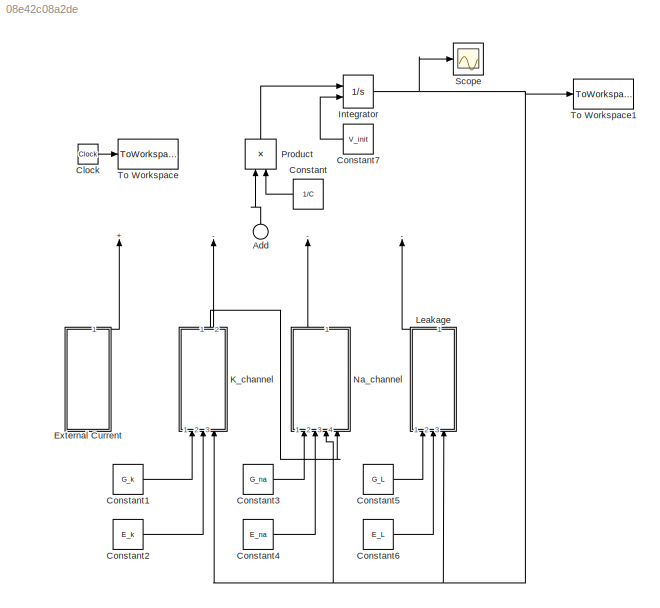
MODEL slx_08e42c08a2de
KIND model
CONFIG AbsTol = auto
CONFIG EnableMultiTasking = off
CONFIG FixedStep = auto
CONFIG MaxStep = auto
CONFIG MinStep = auto
CONFIG RelTol = 1e-9
CONFIG SampleTimeConstraint = Unconstrained
CONFIG Solver = VariableStepAuto
CONFIG SolverName = VariableStepAuto
CONFIG StartTime = 0.0
CONFIG StopTime = 50
BLOCK [Sum] Add
  InputSameDT = off
  Inputs = +---
  OutDataTypeStr = Inherit: Inherit via internal rule
  Ports = [4, 1]
  SaturateOnIntegerOverflow = off
BLOCK [Clock] Clock
BLOCK [Constant] Constant
  Value = 1/C
BLOCK [Constant] Constant1
  Value = G_k
BLOCK [Constant] Constant2
  Value = E_k
BLOCK [Constant] Constant3
  Value = G_na
BLOCK [Constant] Constant4
  Value = E_na
BLOCK [Constant] Constant5
  Value = G_L
BLOCK [Constant] Constant6
  Value = E_L
BLOCK [Constant] Constant7
  Value = V_init
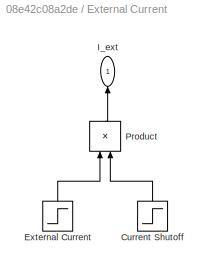
BLOCK [SubSystem] External Current
  Ports = [0, 1]
  RequestExecContextInheritance = off
BLOCK [Step] External Current/Current Shutoff
  After = 0
  Before = 1
  SampleTime = 0
  Time = T_stim_stop
BLOCK [Step] External Current/External Current
  After = I_stim
  SampleTime = 0
  Time = T_stim_start
BLOCK [Outport] External Current/I_ext
  IconDisplay = Port number
BLOCK [Product] External Current/Product
  InputSameDT = off
  OutDataTypeStr = Inherit: Inherit via internal rule
  Ports = [2, 1]
  RndMeth = Floor
  SaturateOnIntegerOverflow = off
BLOCK [Integrator] Integrator
  InitialConditionSource = external
  Ports = [2, 1]
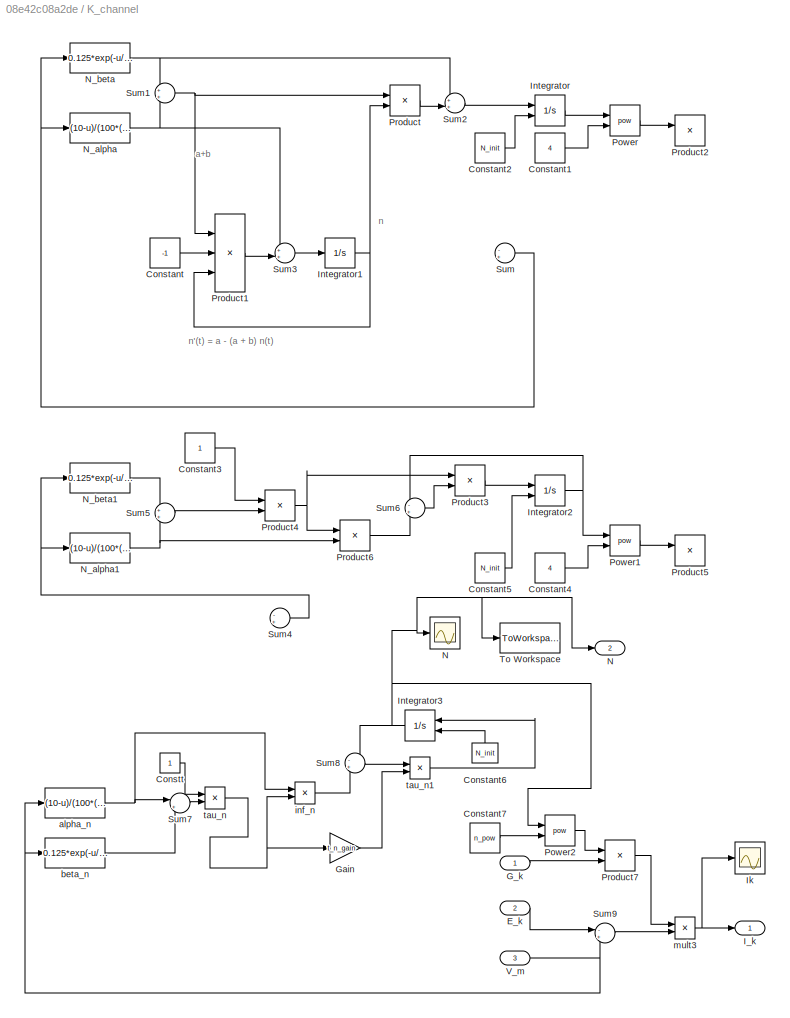
BLOCK [SubSystem] K_channel
  Ports = [3, 2]
  RequestExecContextInheritance = off
BLOCK [Constant] K_channel/Constant
  Commented = on
  Value = -1
BLOCK [Constant] K_channel/Constant1
  Commented = on
  Value = 4
BLOCK [Constant] K_channel/Constant2
  Commented = on
  Value = N_init
BLOCK [Constant] K_channel/Constant3
  Commented = on
BLOCK [Constant] K_channel/Constant4
  Commented = on
  Value = 4
BLOCK [Constant] K_channel/Constant5
  Commented = on
  Value = N_init
BLOCK [Constant] K_channel/Constant6
  Value = N_init
BLOCK [Constant] K_channel/Constant7
  Value = n_pow
BLOCK [Constant] K_channel/Constt
BLOCK [Inport] K_channel/E_k
  IconDisplay = Port number
  Port = 2
BLOCK [Inport] K_channel/G_k
  IconDisplay = Port number
BLOCK [Gain] K_channel/Gain
  Gain = t_n_gain
  OutDataTypeStr = Inherit: Inherit via internal rule
  ParamDataTypeStr = Inherit: Inherit via internal rule
  SaturateOnIntegerOverflow = off
BLOCK [Outport] K_channel/I_k
  IconDisplay = Port number
BLOCK [Scope] K_channel/Ik
  Floating = off
  NumInputPorts = 1
  Ports = [1]
  ScopeSpecificationString = Simulink.scopes.TimeScopeBlockCfg('CurrentConfiguration', extmgr.ConfigurationSet(extmgr.Configuration('Core','General UI',true),extmgr.Configuration('Core','Source UI',true),extmgr.Configuration('Sources','WiredSimulink',true,'DataLoggingVariableName','ScopeData4'),extmgr.Configuration('Visuals','Time Domain',true,'SerializedDisplays',{struct('MinYLimReal','-390.10765','MaxYLimReal','3554.97897',...<+1415ch>
BLOCK [Integrator] K_channel/Integrator
  Commented = on
  InitialConditionSource = external
  Ports = [2, 1]
BLOCK [Integrator] K_channel/Integrator1
  Commented = on
  Ports = [1, 1]
BLOCK [Integrator] K_channel/Integrator2
  Commented = on
  InitialConditionSource = external
  Ports = [2, 1]
BLOCK [Integrator] K_channel/Integrator3
  InitialConditionSource = external
  Ports = [2, 1]
BLOCK [Scope] K_channel/N
  Floating = off
  NumInputPorts = 1
  Ports = [1]
  ScopeSpecificationString = Simulink.scopes.TimeScopeBlockCfg('CurrentConfiguration', extmgr.ConfigurationSet(extmgr.Configuration('Core','General UI',true),extmgr.Configuration('Core','Source UI',true),extmgr.Configuration('Sources','WiredSimulink',true,'DataLoggingVariableName','ScopeData3'),extmgr.Configuration('Visuals','Time Domain',true,'SerializedDisplays',{struct('MinYLimReal','0.23899','MaxYLimReal','1.02607','YLabe...<+1731ch>
BLOCK [Outport] K_channel/N 
  IconDisplay = Port number
  Port = 2
BLOCK [Fcn] K_channel/N_alpha
  Commented = on
  Expr = (10-u)/(100*(exp((10-u)/10)-1))
BLOCK [Fcn] K_channel/N_alpha1
  Commented = on
  Expr = (10-u)/(100*(exp((10-u)/10)-1))
BLOCK [Fcn] K_channel/N_beta
  Commented = on
  Expr = 0.125*exp(-u/80)
BLOCK [Fcn] K_channel/N_beta1
  Commented = on
  Expr = 0.125*exp(-u/80)
BLOCK [Math] K_channel/Power
  Commented = on
  Operator = pow
  Ports = [2, 1]
BLOCK [Math] K_channel/Power1
  Commented = on
  Operator = pow
  Ports = [2, 1]
BLOCK [Math] K_channel/Power2
  Operator = pow
  Ports = [2, 1]
BLOCK [Product] K_channel/Product
  Commented = on
  InputSameDT = off
  OutDataTypeStr = Inherit: Inherit via internal rule
  Ports = [2, 1]
  RndMeth = Floor
  SaturateOnIntegerOverflow = off
BLOCK [Product] K_channel/Product1
  Commented = on
  InputSameDT = off
  Inputs = 3
  OutDataTypeStr = Inherit: Inherit via internal rule
  Ports = [3, 1]
  RndMeth = Floor
  SaturateOnIntegerOverflow = off
BLOCK [Product] K_channel/Product2
  Commented = on
  InputSameDT = off
  OutDataTypeStr = Inherit: Inherit via internal rule
  Ports = [2, 1]
  RndMeth = Floor
  SaturateOnIntegerOverflow = off
BLOCK [Product] K_channel/Product3
  Commented = on
  InputSameDT = off
  Inputs = /*
  OutDataTypeStr = Inherit: Inherit via internal rule
  Ports = [2, 1]
  RndMeth = Floor
  SaturateOnIntegerOverflow = off
BLOCK [Product] K_channel/Product4
  Commented = on
  InputSameDT = off
  Inputs = */
  OutDataTypeStr = Inherit: Inherit via internal rule
  Ports = [2, 1]
  RndMeth = Floor
  SaturateOnIntegerOverflow = off
BLOCK [Product] K_channel/Product5
  Commented = on
  InputSameDT = off
  OutDataTypeStr = Inherit: Inherit via internal rule
  Ports = [2, 1]
  RndMeth = Floor
  SaturateOnIntegerOverflow = off
BLOCK [Product] K_channel/Product6
  Commented = on
  InputSameDT = off
  OutDataTypeStr = Inherit: Inherit via internal rule
  Ports = [2, 1]
  RndMeth = Floor
  SaturateOnIntegerOverflow = off
BLOCK [Product] K_channel/Product7
  InputSameDT = off
  OutDataTypeStr = Inherit: Inherit via internal rule
  Ports = [2, 1]
  RndMeth = Floor
  SaturateOnIntegerOverflow = off
BLOCK [Sum] K_channel/Sum
  Commented = on
  IconShape = round
  InputSameDT = off
  Inputs = -+
  OutDataTypeStr = Inherit: Inherit via internal rule
  Ports = [2, 1]
  SaturateOnIntegerOverflow = off
BLOCK [Sum] K_channel/Sum1
  Commented = on
  IconShape = round
  InputSameDT = off
  OutDataTypeStr = Inherit: Inherit via internal rule
  Ports = [2, 1]
  SaturateOnIntegerOverflow = off
BLOCK [Sum] K_channel/Sum2
  Commented = on
  IconShape = round
  InputSameDT = off
  Inputs = ++|
  OutDataTypeStr = Inherit: Inherit via internal rule
  Ports = [2, 1]
  SaturateOnIntegerOverflow = off
BLOCK [Sum] K_channel/Sum3
  Commented = on
  IconShape = round
  InputSameDT = off
  Inputs = ++|
  OutDataTypeStr = Inherit: Inherit via internal rule
  Ports = [2, 1]
  SaturateOnIntegerOverflow = off
BLOCK [Sum] K_channel/Sum4
  Commented = on
  IconShape = round
  InputSameDT = off
  Inputs = -+
  OutDataTypeStr = Inherit: Inherit via internal rule
  Ports = [2, 1]
  SaturateOnIntegerOverflow = off
BLOCK [Sum] K_channel/Sum5
  Commented = on
  IconShape = round
  InputSameDT = off
  OutDataTypeStr = Inherit: Inherit via internal rule
  Ports = [2, 1]
  SaturateOnIntegerOverflow = off
BLOCK [Sum] K_channel/Sum6
  Commented = on
  IconShape = round
  InputSameDT = off
  Inputs = -+
  OutDataTypeStr = Inherit: Inherit via internal rule
  Ports = [2, 1]
  SaturateOnIntegerOverflow = off
BLOCK [Sum] K_channel/Sum7
  IconShape = round
  InputSameDT = off
  Inputs = |++
  OutDataTypeStr = Inherit: Inherit via internal rule
  Ports = [2, 1]
  SaturateOnIntegerOverflow = off
BLOCK [Sum] K_channel/Sum8
  IconShape = round
  InputSameDT = off
  Inputs = -+
  OutDataTypeStr = Inherit: Inherit via internal rule
  Ports = [2, 1]
  SaturateOnIntegerOverflow = off
BLOCK [Sum] K_channel/Sum9
  IconShape = round
  InputSameDT = off
  Inputs = -+
  OutDataTypeStr = Inherit: Inherit via internal rule
  Ports = [2, 1]
  SaturateOnIntegerOverflow = off
BLOCK [ToWorkspace] K_channel/To Workspace
  FixptAsFi = on
  MaxDataPoints = inf
  Ports = [1]
  SampleTime = -1
  VariableName = N
BLOCK [Inport] K_channel/V_m
  IconDisplay = Port number
  Port = 3
BLOCK [Fcn] K_channel/alpha_n
  Expr = (10-u)/(100*(exp((10-u)/10)-1))
BLOCK [Fcn] K_channel/beta_n
  Expr = 0.125*exp(-u/80)
BLOCK [Product] K_channel/inf_n
  InputSameDT = off
  Inputs = **
  OutDataTypeStr = Inherit: Inherit via internal rule
  Ports = [2, 1]
  RndMeth = Floor
  SaturateOnIntegerOverflow = off
BLOCK [Product] K_channel/mult3
  InputSameDT = off
  Inputs = **
  OutDataTypeStr = Inherit: Inherit via internal rule
  Ports = [2, 1]
  RndMeth = Floor
  SaturateOnIntegerOverflow = off
BLOCK [Product] K_channel/tau_n
  InputSameDT = off
  Inputs = */
  OutDataTypeStr = Inherit: Inherit via internal rule
  Ports = [2, 1]
  RndMeth = Floor
  SaturateOnIntegerOverflow = off
BLOCK [Product] K_channel/tau_n1
  InputSameDT = off
  Inputs = */
  OutDataTypeStr = Inherit: Inherit via internal rule
  Ports = [2, 1]
  RndMeth = Floor
  SaturateOnIntegerOverflow = off
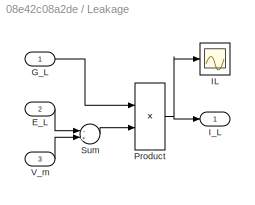
BLOCK [SubSystem] Leakage
  Ports = [3, 1]
  RequestExecContextInheritance = off
BLOCK [Inport] Leakage/E_L
  IconDisplay = Port number
  Port = 2
BLOCK [Inport] Leakage/G_L
  IconDisplay = Port number
BLOCK [Scope] Leakage/IL
  Floating = off
  NumInputPorts = 1
  Ports = [1]
  ScopeSpecificationString = Simulink.scopes.TimeScopeBlockCfg('CurrentConfiguration', extmgr.ConfigurationSet(extmgr.Configuration('Core','General UI',true),extmgr.Configuration('Core','Source UI',true),extmgr.Configuration('Sources','WiredSimulink',true,'DataLoggingVariableName','ScopeData6'),extmgr.Configuration('Visuals','Time Domain',true,'SerializedDisplays',{struct('MinYLimReal','-7.49256','MaxYLimReal','35.59408','YLa...<+1403ch>
BLOCK [Outport] Leakage/I_L
  IconDisplay = Port number
BLOCK [Product] Leakage/Product
  InputSameDT = off
  OutDataTypeStr = Inherit: Inherit via internal rule
  Ports = [2, 1]
  RndMeth = Floor
  SaturateOnIntegerOverflow = off
BLOCK [Sum] Leakage/Sum
  IconShape = round
  InputSameDT = off
  Inputs = -+
  OutDataTypeStr = Inherit: Inherit via internal rule
  Ports = [2, 1]
  SaturateOnIntegerOverflow = off
BLOCK [Inport] Leakage/V_m
  IconDisplay = Port number
  Port = 3
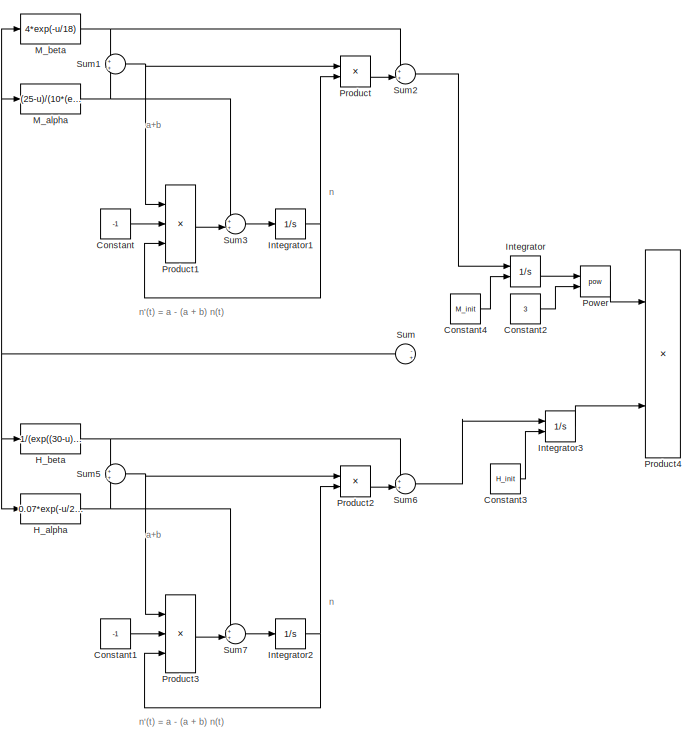
[diagram: Na_channel - part 1/2, top center region]
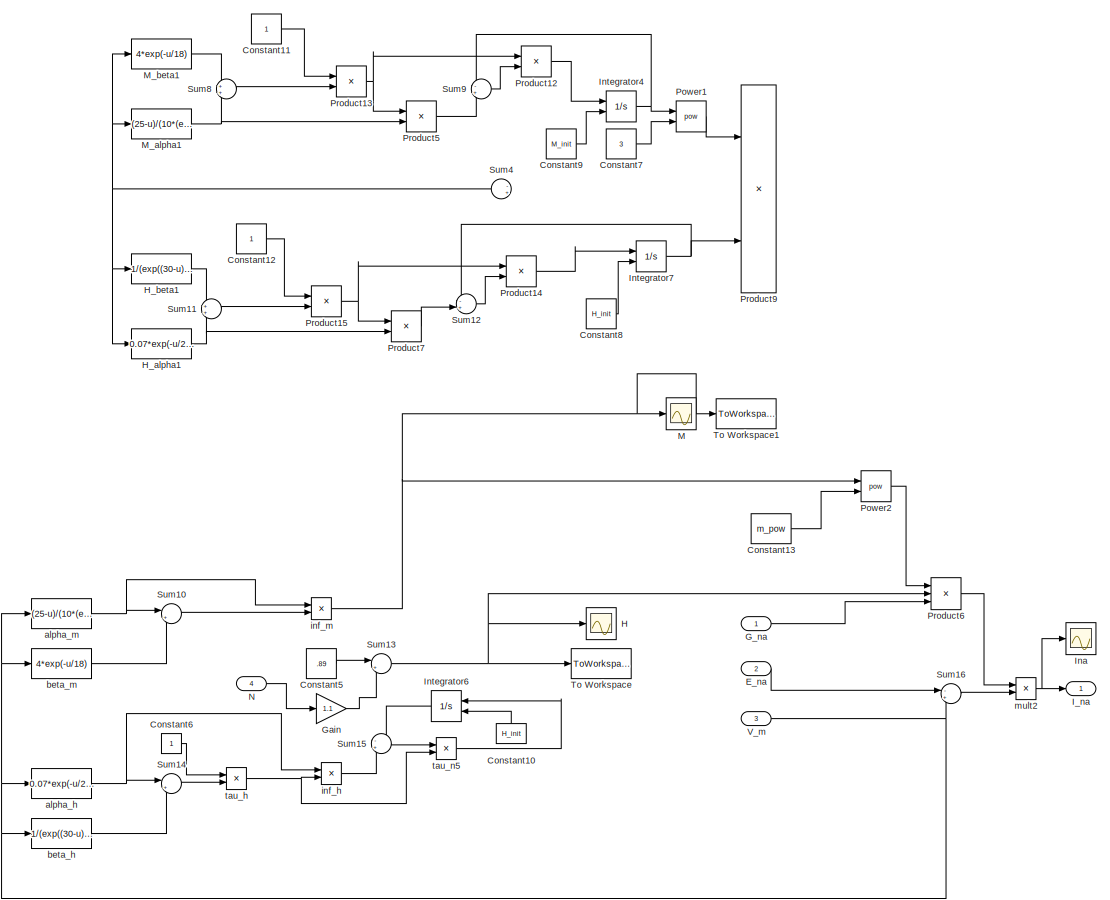
[diagram: Na_channel - part 2/2, full width, bottom band]
BLOCK [SubSystem] Na_channel
  Ports = [4, 1]
  RequestExecContextInheritance = off
BLOCK [Constant] Na_channel/Constant
  Commented = on
  Value = -1
BLOCK [Constant] Na_channel/Constant1
  Commented = on
  Value = -1
BLOCK [Constant] Na_channel/Constant10
  Commented = on
  Value = H_init
BLOCK [Constant] Na_channel/Constant11
  Commented = on
BLOCK [Constant] Na_channel/Constant12
  Commented = on
BLOCK [Constant] Na_channel/Constant13
  Value = m_pow
BLOCK [Constant] Na_channel/Constant2
  Commented = on
  Value = 3
BLOCK [Constant] Na_channel/Constant3
  Commented = on
  Value = H_init
BLOCK [Constant] Na_channel/Constant4
  Commented = on
  Value = M_init
BLOCK [Constant] Na_channel/Constant5
  Value = .89
BLOCK [Constant] Na_channel/Constant6
  Commented = on
BLOCK [Constant] Na_channel/Constant7
  Commented = on
  Value = 3
BLOCK [Constant] Na_channel/Constant8
  Commented = on
  Value = H_init
BLOCK [Constant] Na_channel/Constant9
  Commented = on
  Value = M_init
BLOCK [Inport] Na_channel/E_na
  IconDisplay = Port number
  Port = 2
BLOCK [Inport] Na_channel/G_na
  IconDisplay = Port number
BLOCK [Gain] Na_channel/Gain
  Gain = 1.1
  OutDataTypeStr = Inherit: Inherit via internal rule
  ParamDataTypeStr = Inherit: Inherit via internal rule
  SaturateOnIntegerOverflow = off
BLOCK [Scope] Na_channel/H
  Floating = off
  NumInputPorts = 1
  Ports = [1]
  ScopeSpecificationString = Simulink.scopes.TimeScopeBlockCfg('CurrentConfiguration', extmgr.ConfigurationSet(extmgr.Configuration('Core','General UI',true),extmgr.Configuration('Core','Source UI',true),extmgr.Configuration('Sources','WiredSimulink',true,'DataLoggingVariableName','ScopeData2'),extmgr.Configuration('Visuals','Time Domain',true,'SerializedDisplays',{struct('MinYLimReal','-0.06986','MaxYLimReal','0.66998','YLab...<+1697ch>
BLOCK [Fcn] Na_channel/H_alpha
  Commented = on
  Expr = 0.07*exp(-u/20)
BLOCK [Fcn] Na_channel/H_alpha1
  Commented = on
  Expr = 0.07*exp(-u/20)
BLOCK [Fcn] Na_channel/H_beta
  Commented = on
  Expr = 1/(exp((30-u)/10)+1)
BLOCK [Fcn] Na_channel/H_beta1
  Commented = on
  Expr = 1/(exp((30-u)/10)+1)
BLOCK [Outport] Na_channel/I_na
  IconDisplay = Port number
BLOCK [Scope] Na_channel/Ina
  Floating = off
  NumInputPorts = 1
  Ports = [1]
  ScopeSpecificationString = Simulink.scopes.TimeScopeBlockCfg('CurrentConfiguration', extmgr.ConfigurationSet(extmgr.Configuration('Core','General UI',true),extmgr.Configuration('Core','Source UI',true),extmgr.Configuration('Sources','WiredSimulink',true,'DataLoggingVariableName','ScopeData5'),extmgr.Configuration('Visuals','Time Domain',true,'SerializedDisplays',{struct('MinYLimReal','-885.03224','MaxYLimReal','98.32905','Y...<+1409ch>
BLOCK [Integrator] Na_channel/Integrator
  Commented = on
  InitialConditionSource = external
  Ports = [2, 1]
BLOCK [Integrator] Na_channel/Integrator1
  Commented = on
  Ports = [1, 1]
BLOCK [Integrator] Na_channel/Integrator2
  Commented = on
  Ports = [1, 1]
BLOCK [Integrator] Na_channel/Integrator3
  Commented = on
  InitialConditionSource = external
  Ports = [2, 1]
BLOCK [Integrator] Na_channel/Integrator4
  Commented = on
  InitialConditionSource = external
  Ports = [2, 1]
BLOCK [Integrator] Na_channel/Integrator6
  Commented = on
  InitialConditionSource = external
  Ports = [2, 1]
BLOCK [Integrator] Na_channel/Integrator7
  Commented = on
  InitialConditionSource = external
  Ports = [2, 1]
BLOCK [Scope] Na_channel/M
  Floating = off
  NumInputPorts = 1
  Ports = [1]
  ScopeSpecificationString = Simulink.scopes.TimeScopeBlockCfg('CurrentConfiguration', extmgr.ConfigurationSet(extmgr.Configuration('Core','General UI',true),extmgr.Configuration('Core','Source UI',true),extmgr.Configuration('Sources','WiredSimulink',true,'DataLoggingVariableName','ScopeData1'),extmgr.Configuration('Visuals','Time Domain',true,'SerializedDisplays',{struct('MinYLimReal','-0.44001','MaxYLimReal','4.48967','YLab...<+1735ch>
BLOCK [Fcn] Na_channel/M_alpha
  Commented = on
  Expr = (25-u)/(10*(exp((25-u)/10)-1))
BLOCK [Fcn] Na_channel/M_alpha1
  Commented = on
  Expr = (25-u)/(10*(exp((25-u)/10)-1))
BLOCK [Fcn] Na_channel/M_beta
  Commented = on
  Expr = 4*exp(-u/18)
BLOCK [Fcn] Na_channel/M_beta1
  Commented = on
  Expr = 4*exp(-u/18)
BLOCK [Inport] Na_channel/N
  IconDisplay = Port number
  Port = 4
BLOCK [Math] Na_channel/Power
  Commented = on
  Operator = pow
  Ports = [2, 1]
BLOCK [Math] Na_channel/Power1
  Commented = on
  Operator = pow
  Ports = [2, 1]
BLOCK [Math] Na_channel/Power2
  Operator = pow
  Ports = [2, 1]
BLOCK [Product] Na_channel/Product
  Commented = on
  InputSameDT = off
  OutDataTypeStr = Inherit: Inherit via internal rule
  Ports = [2, 1]
  RndMeth = Floor
  SaturateOnIntegerOverflow = off
BLOCK [Product] Na_channel/Product1
  Commented = on
  InputSameDT = off
  Inputs = 3
  OutDataTypeStr = Inherit: Inherit via internal rule
  Ports = [3, 1]
  RndMeth = Floor
  SaturateOnIntegerOverflow = off
BLOCK [Product] Na_channel/Product12
  Commented = on
  InputSameDT = off
  Inputs = /*
  OutDataTypeStr = Inherit: Inherit via internal rule
  Ports = [2, 1]
  RndMeth = Floor
  SaturateOnIntegerOverflow = off
BLOCK [Product] Na_channel/Product13
  Commented = on
  InputSameDT = off
  Inputs = */
  OutDataTypeStr = Inherit: Inherit via internal rule
  Ports = [2, 1]
  RndMeth = Floor
  SaturateOnIntegerOverflow = off
BLOCK [Product] Na_channel/Product14
  Commented = on
  InputSameDT = off
  Inputs = /*
  OutDataTypeStr = Inherit: Inherit via internal rule
  Ports = [2, 1]
  RndMeth = Floor
  SaturateOnIntegerOverflow = off
BLOCK [Product] Na_channel/Product15
  Commented = on
  InputSameDT = off
  Inputs = */
  OutDataTypeStr = Inherit: Inherit via internal rule
  Ports = [2, 1]
  RndMeth = Floor
  SaturateOnIntegerOverflow = off
BLOCK [Product] Na_channel/Product2
  Commented = on
  InputSameDT = off
  OutDataTypeStr = Inherit: Inherit via internal rule
  Ports = [2, 1]
  RndMeth = Floor
  SaturateOnIntegerOverflow = off
BLOCK [Product] Na_channel/Product3
  Commented = on
  InputSameDT = off
  Inputs = 3
  OutDataTypeStr = Inherit: Inherit via internal rule
  Ports = [3, 1]
  RndMeth = Floor
  SaturateOnIntegerOverflow = off
BLOCK [Product] Na_channel/Product4
  Commented = on
  InputSameDT = off
  Inputs = 3
  OutDataTypeStr = Inherit: Inherit via internal rule
  Ports = [3, 1]
  RndMeth = Floor
  SaturateOnIntegerOverflow = off
BLOCK [Product] Na_channel/Product5
  Commented = on
  InputSameDT = off
  OutDataTypeStr = Inherit: Inherit via internal rule
  Ports = [2, 1]
  RndMeth = Floor
  SaturateOnIntegerOverflow = off
BLOCK [Product] Na_channel/Product6
  InputSameDT = off
  Inputs = 3
  OutDataTypeStr = Inherit: Inherit via internal rule
  Ports = [3, 1]
  RndMeth = Floor
  SaturateOnIntegerOverflow = off
BLOCK [Product] Na_channel/Product7
  Commented = on
  InputSameDT = off
  OutDataTypeStr = Inherit: Inherit via internal rule
  Ports = [2, 1]
  RndMeth = Floor
  SaturateOnIntegerOverflow = off
BLOCK [Product] Na_channel/Product9
  Commented = on
  InputSameDT = off
  Inputs = 3
  OutDataTypeStr = Inherit: Inherit via internal rule
  Ports = [3, 1]
  RndMeth = Floor
  SaturateOnIntegerOverflow = off
BLOCK [Sum] Na_channel/Sum
  Commented = on
  IconShape = round
  InputSameDT = off
  Inputs = -+
  OutDataTypeStr = Inherit: Inherit via internal rule
  Ports = [2, 1]
  SaturateOnIntegerOverflow = off
BLOCK [Sum] Na_channel/Sum1
  Commented = on
  IconShape = round
  InputSameDT = off
  OutDataTypeStr = Inherit: Inherit via internal rule
  Ports = [2, 1]
  SaturateOnIntegerOverflow = off
BLOCK [Sum] Na_channel/Sum10
  IconShape = round
  InputSameDT = off
  Inputs = |++
  OutDataTypeStr = Inherit: Inherit via internal rule
  Ports = [2, 1]
  SaturateOnIntegerOverflow = off
BLOCK [Sum] Na_channel/Sum11
  Commented = on
  IconShape = round
  InputSameDT = off
  OutDataTypeStr = Inherit: Inherit via internal rule
  Ports = [2, 1]
  SaturateOnIntegerOverflow = off
BLOCK [Sum] Na_channel/Sum12
  Commented = on
  IconShape = round
  InputSameDT = off
  Inputs = -+
  OutDataTypeStr = Inherit: Inherit via internal rule
  Ports = [2, 1]
  SaturateOnIntegerOverflow = off
BLOCK [Sum] Na_channel/Sum13
  IconShape = round
  InputSameDT = off
  Inputs = |+-
  OutDataTypeStr = Inherit: Inherit via internal rule
  Ports = [2, 1]
  SaturateOnIntegerOverflow = off
BLOCK [Sum] Na_channel/Sum14
  Commented = on
  IconShape = round
  InputSameDT = off
  Inputs = |++
  OutDataTypeStr = Inherit: Inherit via internal rule
  Ports = [2, 1]
  SaturateOnIntegerOverflow = off
BLOCK [Sum] Na_channel/Sum15
  Commented = on
  IconShape = round
  InputSameDT = off
  Inputs = -+
  OutDataTypeStr = Inherit: Inherit via internal rule
  Ports = [2, 1]
  SaturateOnIntegerOverflow = off
BLOCK [Sum] Na_channel/Sum16
  IconShape = round
  InputSameDT = off
  Inputs = -+
  OutDataTypeStr = Inherit: Inherit via internal rule
  Ports = [2, 1]
  SaturateOnIntegerOverflow = off
BLOCK [Sum] Na_channel/Sum2
  Commented = on
  IconShape = round
  InputSameDT = off
  Inputs = ++|
  OutDataTypeStr = Inherit: Inherit via internal rule
  Ports = [2, 1]
  SaturateOnIntegerOverflow = off
BLOCK [Sum] Na_channel/Sum3
  Commented = on
  IconShape = round
  InputSameDT = off
  Inputs = ++|
  OutDataTypeStr = Inherit: Inherit via internal rule
  Ports = [2, 1]
  SaturateOnIntegerOverflow = off
BLOCK [Sum] Na_channel/Sum4
  Commented = on
  IconShape = round
  InputSameDT = off
  Inputs = -+
  OutDataTypeStr = Inherit: Inherit via internal rule
  Ports = [2, 1]
  SaturateOnIntegerOverflow = off
BLOCK [Sum] Na_channel/Sum5
  Commented = on
  IconShape = round
  InputSameDT = off
  OutDataTypeStr = Inherit: Inherit via internal rule
  Ports = [2, 1]
  SaturateOnIntegerOverflow = off
BLOCK [Sum] Na_channel/Sum6
  Commented = on
  IconShape = round
  InputSameDT = off
  Inputs = ++|
  OutDataTypeStr = Inherit: Inherit via internal rule
  Ports = [2, 1]
  SaturateOnIntegerOverflow = off
BLOCK [Sum] Na_channel/Sum7
  Commented = on
  IconShape = round
  InputSameDT = off
  Inputs = ++|
  OutDataTypeStr = Inherit: Inherit via internal rule
  Ports = [2, 1]
  SaturateOnIntegerOverflow = off
BLOCK [Sum] Na_channel/Sum8
  Commented = on
  IconShape = round
  InputSameDT = off
  OutDataTypeStr = Inherit: Inherit via internal rule
  Ports = [2, 1]
  SaturateOnIntegerOverflow = off
BLOCK [Sum] Na_channel/Sum9
  Commented = on
  IconShape = round
  InputSameDT = off
  Inputs = -+
  OutDataTypeStr = Inherit: Inherit via internal rule
  Ports = [2, 1]
  SaturateOnIntegerOverflow = off
BLOCK [ToWorkspace] Na_channel/To Workspace
  FixptAsFi = on
  MaxDataPoints = inf
  Ports = [1]
  SampleTime = -1
  VariableName = H
BLOCK [ToWorkspace] Na_channel/To Workspace1
  FixptAsFi = on
  MaxDataPoints = inf
  Ports = [1]
  SampleTime = -1
  VariableName = M
BLOCK [Inport] Na_channel/V_m
  IconDisplay = Port number
  Port = 3
BLOCK [Fcn] Na_channel/alpha_h
  Commented = on
  Expr = 0.07*exp(-u/20)
BLOCK [Fcn] Na_channel/alpha_m
  Expr = (25-u)/(10*(exp((25-u)/10)-1))
BLOCK [Fcn] Na_channel/beta_h
  Commented = on
  Expr = 1/(exp((30-u)/10)+1)
BLOCK [Fcn] Na_channel/beta_m
  Expr = 4*exp(-u/18)
BLOCK [Product] Na_channel/inf_h
  Commented = on
  InputSameDT = off
  Inputs = **
  OutDataTypeStr = Inherit: Inherit via internal rule
  Ports = [2, 1]
  RndMeth = Floor
  SaturateOnIntegerOverflow = off
BLOCK [Product] Na_channel/inf_m
  InputSameDT = off
  Inputs = */
  OutDataTypeStr = Inherit: Inherit via internal rule
  Ports = [2, 1]
  RndMeth = Floor
  SaturateOnIntegerOverflow = off
BLOCK [Product] Na_channel/mult2
  InputSameDT = off
  Inputs = **
  OutDataTypeStr = Inherit: Inherit via internal rule
  Ports = [2, 1]
  RndMeth = Floor
  SaturateOnIntegerOverflow = off
BLOCK [Product] Na_channel/tau_h
  Commented = on
  InputSameDT = off
  Inputs = */
  OutDataTypeStr = Inherit: Inherit via internal rule
  Ports = [2, 1]
  RndMeth = Floor
  SaturateOnIntegerOverflow = off
BLOCK [Product] Na_channel/tau_n5
  Commented = on
  InputSameDT = off
  Inputs = */
  OutDataTypeStr = Inherit: Inherit via internal rule
  Ports = [2, 1]
  RndMeth = Floor
  SaturateOnIntegerOverflow = off
BLOCK [Product] Product
  InputSameDT = off
  OutDataTypeStr = Inherit: Inherit via internal rule
  Ports = [2, 1]
  RndMeth = Floor
  SaturateOnIntegerOverflow = off
BLOCK [Scope] Scope
  Floating = off
  NumInputPorts = 1
  Ports = [1]
  ScopeSpecificationString = Simulink.scopes.TimeScopeBlockCfg('CurrentConfiguration', extmgr.ConfigurationSet(extmgr.Configuration('Core','General UI',true),extmgr.Configuration('Core','Source UI',true),extmgr.Configuration('Sources','WiredSimulink',true),extmgr.Configuration('Visuals','Time Domain',true,'SerializedDisplays',{struct('MinYLimReal','-14.36221','MaxYLimReal','129.25993','YLabelReal','','MinYLimMag','0.00000','M...<+1373ch>
BLOCK [ToWorkspace] To Workspace
  FixptAsFi = on
  MaxDataPoints = inf
  Ports = [1]
  SampleTime = -1
  VariableName = Time
BLOCK [ToWorkspace] To Workspace1
  FixptAsFi = on
  MaxDataPoints = inf
  Ports = [1]
  SampleTime = -1
  VariableName = V_m
ANNOTATION K_channel: a+b
ANNOTATION K_channel: n
ANNOTATION K_channel: n'(t) = a - (a + b) n(t)
ANNOTATION Na_channel: a+b
ANNOTATION Na_channel: n
ANNOTATION Na_channel: n'(t) = a - (a + b) n(t)
LINE Add:1 -> Product:1
LINE Clock:1 -> To Workspace:1
LINE Constant1:1 -> K_channel:1
LINE Constant2:1 -> K_channel:2
LINE Constant3:1 -> Na_channel:1
LINE Constant4:1 -> Na_channel:2
LINE Constant5:1 -> Leakage:1
LINE Constant6:1 -> Leakage:2
LINE Constant7:1 -> Integrator:2
LINE Constant:1 -> Product:2
LINE External Current/Current Shutoff:1 -> External Current/Product:2
LINE External Current/External Current:1 -> External Current/Product:1
LINE External Current/Product:1 -> External Current/I_ext:1
LINE External Current:1 -> Add:1
NET Integrator:1 -> K_channel:3, Leakage:3, Na_channel:3, Scope:1, To Workspace1:1
LINE K_channel/Constant1:1 -> K_channel/Power:2
LINE K_channel/Constant2:1 -> K_channel/Integrator:2
LINE K_channel/Constant3:1 -> K_channel/Product4:1
LINE K_channel/Constant4:1 -> K_channel/Power1:2
LINE K_channel/Constant5:1 -> K_channel/Integrator2:2
LINE K_channel/Constant6:1 -> K_channel/Integrator3:2
LINE K_channel/Constant7:1 -> K_channel/Power2:2
LINE K_channel/Constant:1 -> K_channel/Product1:2
LINE K_channel/Constt:1 -> K_channel/tau_n:1
LINE K_channel/E_k:1 -> K_channel/Sum9:1
LINE K_channel/G_k:1 -> K_channel/Product7:2
LINE K_channel/Gain:1 -> K_channel/tau_n1:2
NET K_channel/Integrator1:1 -> K_channel/Product1:3, K_channel/Product:2
NET K_channel/Integrator2:1 -> K_channel/Power1:1, K_channel/Sum6:1
NET K_channel/Integrator3:1 -> K_channel/N :1, K_channel/N:1, K_channel/Power2:1, K_channel/Sum8:1, K_channel/To Workspace:1
LINE K_channel/Integrator:1 -> K_channel/Power:1
NET K_channel/N_alpha1:1 -> K_channel/Product6:2, K_channel/Sum5:2
NET K_channel/N_alpha:1 -> K_channel/Sum1:2, K_channel/Sum3:1
LINE K_channel/N_beta1:1 -> K_channel/Sum5:1
NET K_channel/N_beta:1 -> K_channel/Sum1:1, K_channel/Sum2:1
LINE K_channel/Power1:1 -> K_channel/Product5:1
LINE K_channel/Power2:1 -> K_channel/Product7:1
LINE K_channel/Power:1 -> K_channel/Product2:1
LINE K_channel/Product1:1 -> K_channel/Sum3:2
LINE K_channel/Product3:1 -> K_channel/Integrator2:1
NET K_channel/Product4:1 -> K_channel/Product3:1, K_channel/Product6:1
LINE K_channel/Product6:1 -> K_channel/Sum6:2
LINE K_channel/Product7:1 -> K_channel/mult3:1
LINE K_channel/Product:1 -> K_channel/Sum2:2
NET K_channel/Sum1:1 -> K_channel/Product1:1, K_channel/Product:1
LINE K_channel/Sum2:1 -> K_channel/Integrator:1
LINE K_channel/Sum3:1 -> K_channel/Integrator1:1
NET K_channel/Sum4:1 -> K_channel/N_alpha1:1, K_channel/N_beta1:1
LINE K_channel/Sum5:1 -> K_channel/Product4:2
LINE K_channel/Sum6:1 -> K_channel/Product3:2
LINE K_channel/Sum7:1 -> K_channel/tau_n:2
LINE K_channel/Sum8:1 -> K_channel/tau_n1:1
LINE K_channel/Sum9:1 -> K_channel/mult3:2
NET K_channel/Sum:1 -> K_channel/N_alpha:1, K_channel/N_beta:1
NET K_channel/V_m:1 -> K_channel/Sum9:2, K_channel/alpha_n:1, K_channel/beta_n:1
NET K_channel/alpha_n:1 -> K_channel/Sum7:1, K_channel/inf_n:1
LINE K_channel/beta_n:1 -> K_channel/Sum7:2
LINE K_channel/inf_n:1 -> K_channel/Sum8:2
NET K_channel/mult3:1 -> K_channel/I_k:1, K_channel/Ik:1
LINE K_channel/tau_n1:1 -> K_channel/Integrator3:1
NET K_channel/tau_n:1 -> K_channel/Gain:1, K_channel/inf_n:2
LINE K_channel:1 -> Add:2
LINE K_channel:2 -> Na_channel:4
LINE Leakage/E_L:1 -> Leakage/Sum:1
LINE Leakage/G_L:1 -> Leakage/Product:1
NET Leakage/Product:1 -> Leakage/IL:1, Leakage/I_L:1
LINE Leakage/Sum:1 -> Leakage/Product:2
LINE Leakage/V_m:1 -> Leakage/Sum:2
LINE Leakage:1 -> Add:4
LINE Na_channel/Constant10:1 -> Na_channel/Integrator6:2
LINE Na_channel/Constant11:1 -> Na_channel/Product13:1
LINE Na_channel/Constant12:1 -> Na_channel/Product15:1
LINE Na_channel/Constant13:1 -> Na_channel/Power2:2
LINE Na_channel/Constant1:1 -> Na_channel/Product3:2
LINE Na_channel/Constant2:1 -> Na_channel/Power:2
LINE Na_channel/Constant3:1 -> Na_channel/Integrator3:2
LINE Na_channel/Constant4:1 -> Na_channel/Integrator:2
LINE Na_channel/Constant5:1 -> Na_channel/Sum13:1
LINE Na_channel/Constant6:1 -> Na_channel/tau_h:1
LINE Na_channel/Constant7:1 -> Na_channel/Power1:2
LINE Na_channel/Constant8:1 -> Na_channel/Integrator7:2
LINE Na_channel/Constant9:1 -> Na_channel/Integrator4:2
LINE Na_channel/Constant:1 -> Na_channel/Product1:2
LINE Na_channel/E_na:1 -> Na_channel/Sum16:1
LINE Na_channel/G_na:1 -> Na_channel/Product6:3
LINE Na_channel/Gain:1 -> Na_channel/Sum13:2
NET Na_channel/H_alpha1:1 -> Na_channel/Product7:2, Na_channel/Sum11:2
NET Na_channel/H_alpha:1 -> Na_channel/Sum5:2, Na_channel/Sum7:1
LINE Na_channel/H_beta1:1 -> Na_channel/Sum11:1
NET Na_channel/H_beta:1 -> Na_channel/Sum5:1, Na_channel/Sum6:1
NET Na_channel/Integrator1:1 -> Na_channel/Product1:3, Na_channel/Product:2
NET Na_channel/Integrator2:1 -> Na_channel/Product2:2, Na_channel/Product3:3
LINE Na_channel/Integrator3:1 -> Na_channel/Product4:3
NET Na_channel/Integrator4:1 -> Na_channel/Power1:1, Na_channel/Sum9:1
LINE Na_channel/Integrator6:1 -> Na_channel/Sum15:1
NET Na_channel/Integrator7:1 -> Na_channel/Product9:3, Na_channel/Sum12:1
LINE Na_channel/Integrator:1 -> Na_channel/Power:1
NET Na_channel/M_alpha1:1 -> Na_channel/Product5:2, Na_channel/Sum8:2
NET Na_channel/M_alpha:1 -> Na_channel/Sum1:2, Na_channel/Sum3:1
LINE Na_channel/M_beta1:1 -> Na_channel/Sum8:1
NET Na_channel/M_beta:1 -> Na_channel/Sum1:1, Na_channel/Sum2:1
LINE Na_channel/N:1 -> Na_channel/Gain:1
LINE Na_channel/Power1:1 -> Na_channel/Product9:1
LINE Na_channel/Power2:1 -> Na_channel/Product6:1
LINE Na_channel/Power:1 -> Na_channel/Product4:1
LINE Na_channel/Product12:1 -> Na_channel/Integrator4:1
NET Na_channel/Product13:1 -> Na_channel/Product12:1, Na_channel/Product5:1
LINE Na_channel/Product14:1 -> Na_channel/Integrator7:1
NET Na_channel/Product15:1 -> Na_channel/Product14:1, Na_channel/Product7:1
LINE Na_channel/Product1:1 -> Na_channel/Sum3:2
LINE Na_channel/Product2:1 -> Na_channel/Sum6:2
LINE Na_channel/Product3:1 -> Na_channel/Sum7:2
LINE Na_channel/Product5:1 -> Na_channel/Sum9:2
LINE Na_channel/Product6:1 -> Na_channel/mult2:1
LINE Na_channel/Product7:1 -> Na_channel/Sum12:2
LINE Na_channel/Product:1 -> Na_channel/Sum2:2
LINE Na_channel/Sum10:1 -> Na_channel/inf_m:2
LINE Na_channel/Sum11:1 -> Na_channel/Product15:2
LINE Na_channel/Sum12:1 -> Na_channel/Product14:2
NET Na_channel/Sum13:1 -> Na_channel/H:1, Na_channel/Product6:2, Na_channel/To Workspace:1
LINE Na_channel/Sum14:1 -> Na_channel/tau_h:2
LINE Na_channel/Sum15:1 -> Na_channel/tau_n5:1
LINE Na_channel/Sum16:1 -> Na_channel/mult2:2
NET Na_channel/Sum1:1 -> Na_channel/Product1:1, Na_channel/Product:1
LINE Na_channel/Sum2:1 -> Na_channel/Integrator:1
LINE Na_channel/Sum3:1 -> Na_channel/Integrator1:1
NET Na_channel/Sum4:1 -> Na_channel/H_alpha1:1, Na_channel/H_beta1:1, Na_channel/M_alpha1:1, Na_channel/M_beta1:1
NET Na_channel/Sum5:1 -> Na_channel/Product2:1, Na_channel/Product3:1
LINE Na_channel/Sum6:1 -> Na_channel/Integrator3:1
LINE Na_channel/Sum7:1 -> Na_channel/Integrator2:1
LINE Na_channel/Sum8:1 -> Na_channel/Product13:2
LINE Na_channel/Sum9:1 -> Na_channel/Product12:2
NET Na_channel/Sum:1 -> Na_channel/H_alpha:1, Na_channel/H_beta:1, Na_channel/M_alpha:1, Na_channel/M_beta:1
NET Na_channel/V_m:1 -> Na_channel/Sum16:2, Na_channel/alpha_h:1, Na_channel/alpha_m:1, Na_channel/beta_h:1, Na_channel/beta_m:1
NET Na_channel/alpha_h:1 -> Na_channel/Sum14:1, Na_channel/inf_h:1
NET Na_channel/alpha_m:1 -> Na_channel/Sum10:1, Na_channel/inf_m:1
LINE Na_channel/beta_h:1 -> Na_channel/Sum14:2
LINE Na_channel/beta_m:1 -> Na_channel/Sum10:2
LINE Na_channel/inf_h:1 -> Na_channel/Sum15:2
NET Na_channel/inf_m:1 -> Na_channel/M:1, Na_channel/Power2:1, Na_channel/To Workspace1:1
NET Na_channel/mult2:1 -> Na_channel/I_na:1, Na_channel/Ina:1
NET Na_channel/tau_h:1 -> Na_channel/inf_h:2, Na_channel/tau_n5:2
LINE Na_channel/tau_n5:1 -> Na_channel/Integrator6:1
LINE Na_channel:1 -> Add:3
LINE Product:1 -> Integrator:1
note: NET lines group one-source signal fan-out (src -> all destinations, sorted); 1:1 wires keep LINE
